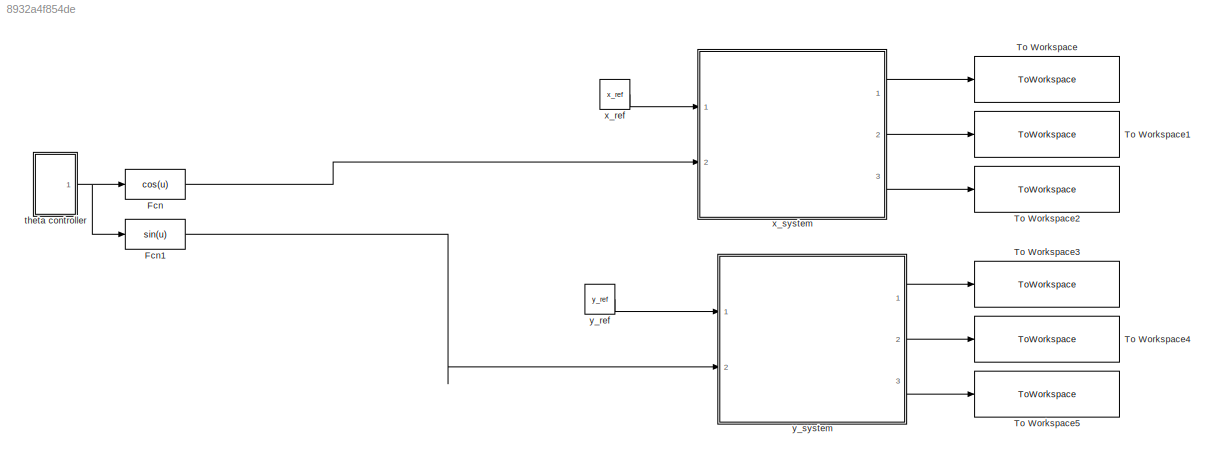
MODEL slx_8932a4f854de
KIND model
CONFIG AbsTol = auto
CONFIG FixedStep = auto
CONFIG MaxStep = auto
CONFIG MinStep = auto
CONFIG RelTol = 1e-3
CONFIG SampleTimeConstraint = Unconstrained
CONFIG Solver = ode45
CONFIG SolverMode = Auto
CONFIG SolverName = ode45
CONFIG StartTime = 0.0
CONFIG StopTime = 10.0
BLOCK [Fcn] Fcn
  Expr = cos(u)
BLOCK [Fcn] Fcn1
  Expr = sin(u)
BLOCK [ToWorkspace] To Workspace
  FixptAsFi = on
  MaxDataPoints = inf
  Ports = [1]
  SampleTime = -1
  Save2DSignal = 3-D array (concatenate along third dimension)
  SaveFormat = Timeseries
  VariableName = x_control_signal
BLOCK [ToWorkspace] To Workspace1
  FixptAsFi = on
  MaxDataPoints = inf
  Ports = [1]
  SampleTime = -1
  Save2DSignal = 3-D array (concatenate along third dimension)
  SaveFormat = Timeseries
  VariableName = x_continuous
BLOCK [ToWorkspace] To Workspace2
  FixptAsFi = on
  MaxDataPoints = inf
  Ports = [1]
  SampleTime = -1
  Save2DSignal = 3-D array (concatenate along third dimension)
  SaveFormat = Timeseries
  VariableName = x_discrete
BLOCK [ToWorkspace] To Workspace3
  FixptAsFi = on
  MaxDataPoints = inf
  Ports = [1]
  SampleTime = -1
  Save2DSignal = 3-D array (concatenate along third dimension)
  SaveFormat = Timeseries
  VariableName = y_control_signal
BLOCK [ToWorkspace] To Workspace4
  FixptAsFi = on
  MaxDataPoints = inf
  Ports = [1]
  SampleTime = -1
  Save2DSignal = 3-D array (concatenate along third dimension)
  SaveFormat = Timeseries
  VariableName = y_continuous
BLOCK [ToWorkspace] To Workspace5
  FixptAsFi = on
  MaxDataPoints = inf
  Ports = [1]
  SampleTime = -1
  Save2DSignal = 3-D array (concatenate along third dimension)
  SaveFormat = Timeseries
  VariableName = y_discrete
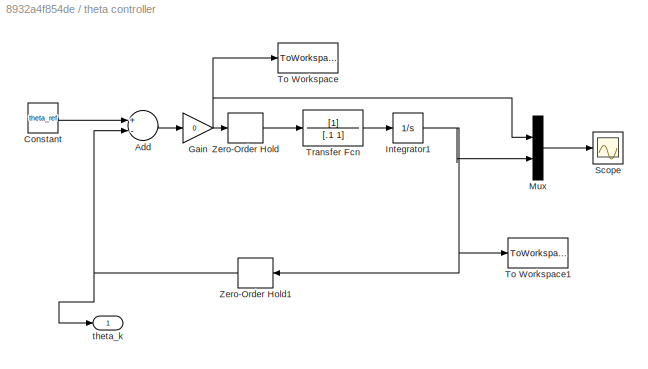
BLOCK [SubSystem] theta controller
  Ports = [0, 1]
  RequestExecContextInheritance = off
BLOCK [Sum] theta controller/Add
  InputSameDT = off
  Inputs = +-
  OutDataTypeStr = Inherit: Inherit via internal rule
  Ports = [2, 1]
  SaturateOnIntegerOverflow = off
BLOCK [Constant] theta controller/Constant
  Value = theta_ref
BLOCK [Gain] theta controller/Gain
  Gain = 0
  OutDataTypeStr = Inherit: Inherit via internal rule
  ParamDataTypeStr = Inherit: Inherit via internal rule
  SaturateOnIntegerOverflow = off
BLOCK [Integrator] theta controller/Integrator1
  InitialCondition = 1
  Ports = [1, 1]
BLOCK [Mux] theta controller/Mux
  DisplayOption = bar
  Inputs = 2
  Ports = [2, 1]
BLOCK [Scope] theta controller/Scope
  DataFormat = StructureWithTime
  Floating = off
  LimitDataPoints = off
  NumInputPorts = 1
  Ports = [1]
  SampleTime = 0
BLOCK [ToWorkspace] theta controller/To Workspace
  FixptAsFi = on
  MaxDataPoints = inf
  Ports = [1]
  SampleTime = -1
  Save2DSignal = 3-D array (concatenate along third dimension)
  SaveFormat = Timeseries
  VariableName = theta_dot
BLOCK [ToWorkspace] theta controller/To Workspace1
  FixptAsFi = on
  MaxDataPoints = inf
  Ports = [1]
  SampleTime = -1
  Save2DSignal = 3-D array (concatenate along third dimension)
  SaveFormat = Timeseries
  VariableName = theta
BLOCK [TransferFcn] theta controller/Transfer Fcn
  Denominator = [.1 1]
BLOCK [ZeroOrderHold] theta controller/Zero-Order Hold
  SampleTime = Ts
BLOCK [ZeroOrderHold] theta controller/Zero-Order Hold1
  SampleTime = Ts
BLOCK [Outport] theta controller/theta_k
  IconDisplay = Port number
BLOCK [Constant] x_ref
  Value = x_ref
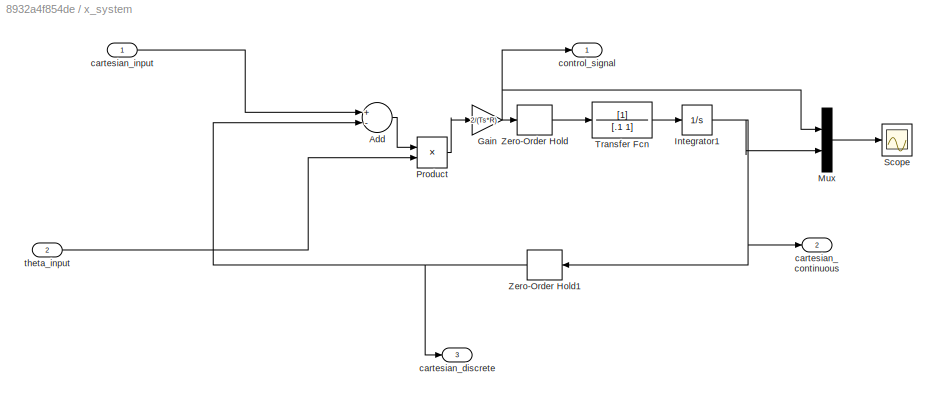
BLOCK [SubSystem] x_system
  Ports = [2, 3]
  RequestExecContextInheritance = off
BLOCK [Sum] x_system/Add
  InputSameDT = off
  Inputs = +-
  OutDataTypeStr = Inherit: Inherit via internal rule
  Ports = [2, 1]
  SaturateOnIntegerOverflow = off
BLOCK [Gain] x_system/Gain
  Gain = 2/(Ts*R)
  OutDataTypeStr = Inherit: Inherit via internal rule
  ParamDataTypeStr = Inherit: Inherit via internal rule
  SaturateOnIntegerOverflow = off
BLOCK [Integrator] x_system/Integrator1
  InitialCondition = 1
  Ports = [1, 1]
BLOCK [Mux] x_system/Mux
  DisplayOption = bar
  Inputs = 2
  Ports = [2, 1]
BLOCK [Product] x_system/Product
  InputSameDT = off
  OutDataTypeStr = Inherit: Inherit via internal rule
  Ports = [2, 1]
  RndMeth = Floor
  SaturateOnIntegerOverflow = off
BLOCK [Scope] x_system/Scope
  DataFormat = StructureWithTime
  Floating = off
  LimitDataPoints = off
  NumInputPorts = 1
  Ports = [1]
  SampleTime = 0
  SaveName = ScopeData1
BLOCK [TransferFcn] x_system/Transfer Fcn
  Denominator = [.1 1]
BLOCK [ZeroOrderHold] x_system/Zero-Order Hold
  SampleTime = Ts
BLOCK [ZeroOrderHold] x_system/Zero-Order Hold1
  SampleTime = Ts
BLOCK [Outport] x_system/cartesian_continuous
  IconDisplay = Port number
  Port = 2
BLOCK [Outport] x_system/cartesian_discrete
  IconDisplay = Port number
  Port = 3
BLOCK [Inport] x_system/cartesian_input
  IconDisplay = Port number
BLOCK [Outport] x_system/control_signal
  IconDisplay = Port number
BLOCK [Inport] x_system/theta_input
  IconDisplay = Port number
  Port = 2
BLOCK [Constant] y_ref
  Value = y_ref
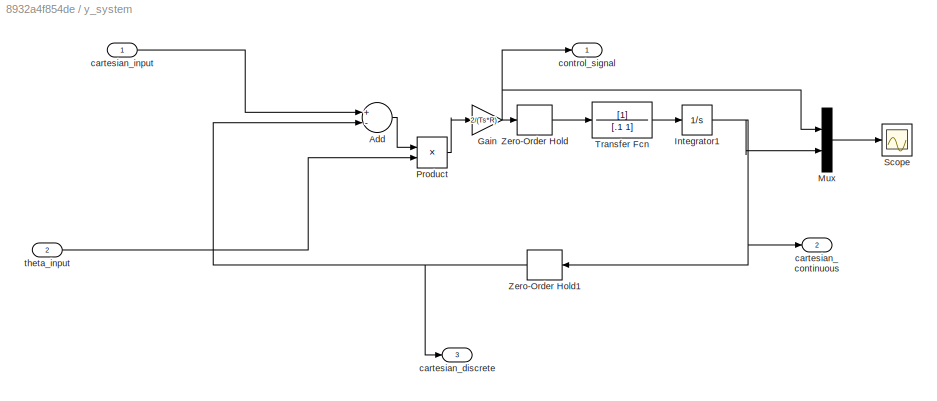
BLOCK [SubSystem] y_system
  Ports = [2, 3]
  RequestExecContextInheritance = off
BLOCK [Sum] y_system/Add
  InputSameDT = off
  Inputs = +-
  OutDataTypeStr = Inherit: Inherit via internal rule
  Ports = [2, 1]
  SaturateOnIntegerOverflow = off
BLOCK [Gain] y_system/Gain
  Gain = 2/(Ts*R)
  OutDataTypeStr = Inherit: Inherit via internal rule
  ParamDataTypeStr = Inherit: Inherit via internal rule
  SaturateOnIntegerOverflow = off
BLOCK [Integrator] y_system/Integrator1
  InitialCondition = 1
  Ports = [1, 1]
BLOCK [Mux] y_system/Mux
  DisplayOption = bar
  Inputs = 2
  Ports = [2, 1]
BLOCK [Product] y_system/Product
  InputSameDT = off
  OutDataTypeStr = Inherit: Inherit via internal rule
  Ports = [2, 1]
  RndMeth = Floor
  SaturateOnIntegerOverflow = off
BLOCK [Scope] y_system/Scope
  DataFormat = StructureWithTime
  Floating = off
  LimitDataPoints = off
  NumInputPorts = 1
  Ports = [1]
  SampleTime = 0
  SaveName = ScopeData1
BLOCK [TransferFcn] y_system/Transfer Fcn
  Denominator = [.1 1]
BLOCK [ZeroOrderHold] y_system/Zero-Order Hold
  SampleTime = Ts
BLOCK [ZeroOrderHold] y_system/Zero-Order Hold1
  SampleTime = Ts
BLOCK [Outport] y_system/cartesian_continuous
  IconDisplay = Port number
  Port = 2
BLOCK [Outport] y_system/cartesian_discrete
  IconDisplay = Port number
  Port = 3
BLOCK [Inport] y_system/cartesian_input
  IconDisplay = Port number
BLOCK [Outport] y_system/control_signal
  IconDisplay = Port number
BLOCK [Inport] y_system/theta_input
  IconDisplay = Port number
  Port = 2
LINE Fcn1:1 -> y_system:2
LINE Fcn:1 -> x_system:2
LINE theta controller/Add:1 -> theta controller/Gain:1
LINE theta controller/Constant:1 -> theta controller/Add:1
NET theta controller/Gain:1 -> theta controller/Mux:1, theta controller/To Workspace:1, theta controller/Zero-Order Hold:1
NET theta controller/Integrator1:1 -> theta controller/Mux:2, theta controller/To Workspace1:1, theta controller/Zero-Order Hold1:1
LINE theta controller/Mux:1 -> theta controller/Scope:1
LINE theta controller/Transfer Fcn:1 -> theta controller/Integrator1:1
NET theta controller/Zero-Order Hold1:1 -> theta controller/Add:2, theta controller/theta_k:1
LINE theta controller/Zero-Order Hold:1 -> theta controller/Transfer Fcn:1
NET theta controller:1 -> Fcn1:1, Fcn:1
LINE x_ref:1 -> x_system:1
LINE x_system/Add:1 -> x_system/Product:1
NET x_system/Gain:1 -> x_system/Mux:1, x_system/Zero-Order Hold:1, x_system/control_signal:1
NET x_system/Integrator1:1 -> x_system/Mux:2, x_system/Zero-Order Hold1:1, x_system/cartesian_continuous:1
LINE x_system/Mux:1 -> x_system/Scope:1
LINE x_system/Product:1 -> x_system/Gain:1
LINE x_system/Transfer Fcn:1 -> x_system/Integrator1:1
NET x_system/Zero-Order Hold1:1 -> x_system/Add:2, x_system/cartesian_discrete:1
LINE x_system/Zero-Order Hold:1 -> x_system/Transfer Fcn:1
LINE x_system/cartesian_input:1 -> x_system/Add:1
LINE x_system/theta_input:1 -> x_system/Product:2
LINE x_system:1 -> To Workspace:1
LINE x_system:2 -> To Workspace1:1
LINE x_system:3 -> To Workspace2:1
LINE y_ref:1 -> y_system:1
LINE y_system/Add:1 -> y_system/Product:1
NET y_system/Gain:1 -> y_system/Mux:1, y_system/Zero-Order Hold:1, y_system/control_signal:1
NET y_system/Integrator1:1 -> y_system/Mux:2, y_system/Zero-Order Hold1:1, y_system/cartesian_continuous:1
LINE y_system/Mux:1 -> y_system/Scope:1
LINE y_system/Product:1 -> y_system/Gain:1
LINE y_system/Transfer Fcn:1 -> y_system/Integrator1:1
NET y_system/Zero-Order Hold1:1 -> y_system/Add:2, y_system/cartesian_discrete:1
LINE y_system/Zero-Order Hold:1 -> y_system/Transfer Fcn:1
LINE y_system/cartesian_input:1 -> y_system/Add:1
LINE y_system/theta_input:1 -> y_system/Product:2
LINE y_system:1 -> To Workspace3:1
LINE y_system:2 -> To Workspace4:1
LINE y_system:3 -> To Workspace5:1
note: NET lines group one-source signal fan-out (src -> all destinations, sorted); 1:1 wires keep LINE
